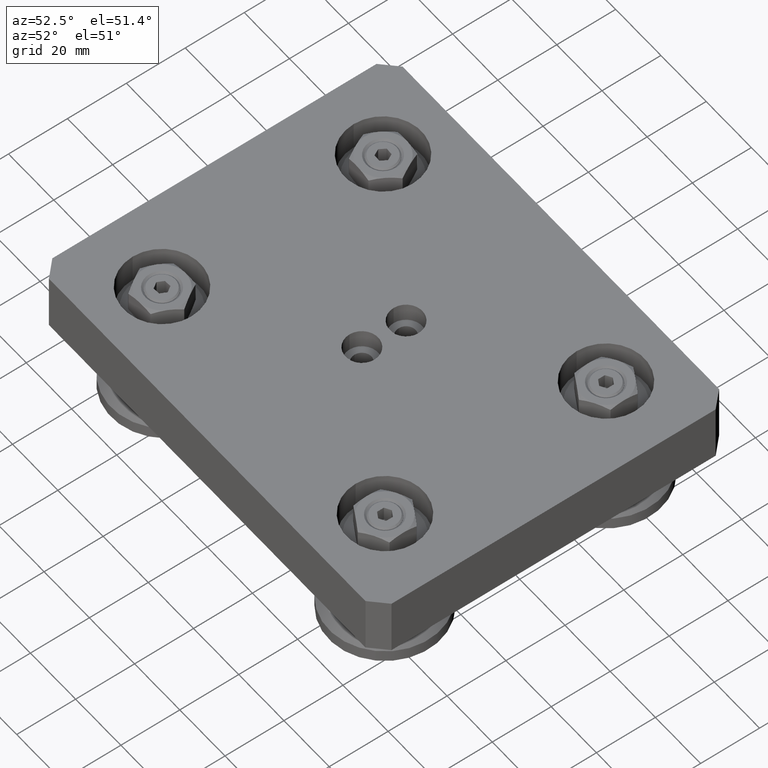
[diagram: clean part render]
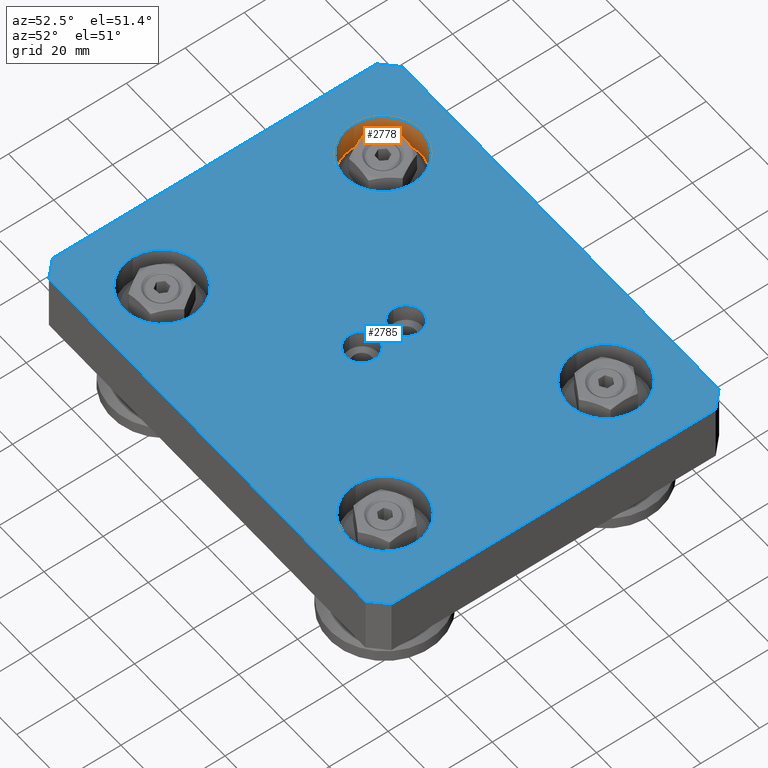
[diagram: same view with the hole feature highlighted: cylindrical wall and planar end face, labeled with their STEP entity ids]
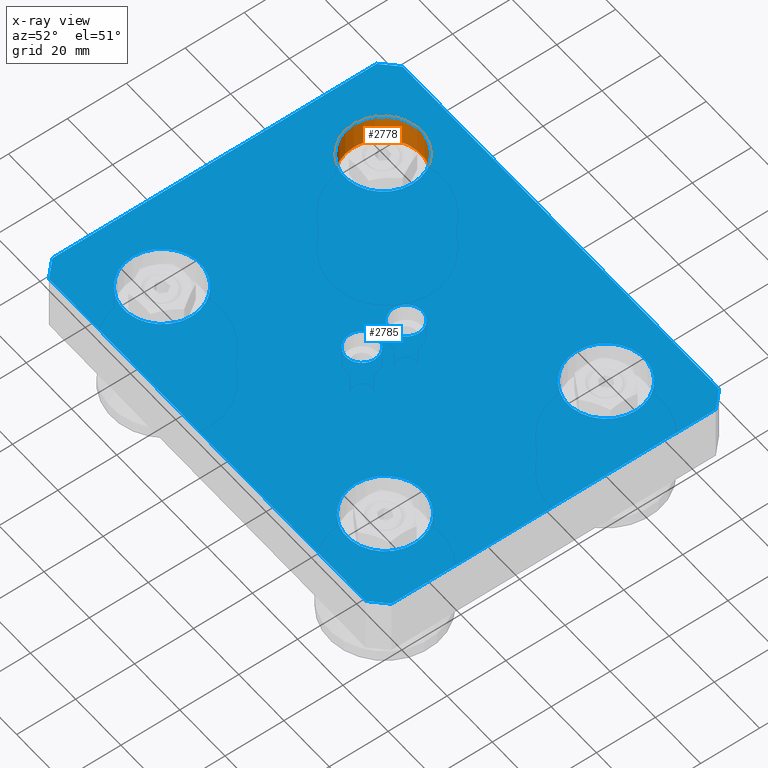
[diagram: x-ray of the same camera — body ghosted, the hole faces saturated]
A machine part, auxiliary view. The highlighted faces form one hole feature of diameter 26 mm: the cylindrical wall (entity #2778, orange) and its adjacent planar end face (entity #2785, blue) — they share a circular edge in the B-rep.
The next image is the same camera in x-ray (body ghosted, the hole faces saturated) — the bore reads through the body.
Wall:
#184=CYLINDRICAL_SURFACE('',#3183,13.);
#285=CIRCLE('',#3181,13.);
#287=CIRCLE('',#3184,13.);
#439=FACE_OUTER_BOUND('',#631,.T.);
#631=EDGE_LOOP('',(#1960,#1961,#1962,#1963));
#851=LINE('',#4539,#1064);
#1064=VECTOR('',#3617,13.);
#1281=VERTEX_POINT('',#4532);
#1283=VERTEX_POINT('',#4537);
#1539=EDGE_CURVE('',#1281,#1281,#285,.T.);
#1541=EDGE_CURVE('',#1283,#1283,#287,.T.);
#1542=EDGE_CURVE('',#1283,#1281,#851,.T.);
#1960=ORIENTED_EDGE('',*,*,#1541,.F.);
#1961=ORIENTED_EDGE('',*,*,#1542,.T.);
#1962=ORIENTED_EDGE('',*,*,#1539,.F.);
#1963=ORIENTED_EDGE('',*,*,#1542,.F.);
#2778=ADVANCED_FACE('',(#439),#184,.F.);
#3181=AXIS2_PLACEMENT_3D('',#4533,#3609,#3610);
#3183=AXIS2_PLACEMENT_3D('',#4536,#3613,#3614);
#3184=AXIS2_PLACEMENT_3D('',#4538,#3615,#3616);
#3609=DIRECTION('center_axis',(0.,0.,1.));
#3610=DIRECTION('ref_axis',(1.,0.,0.));
#3613=DIRECTION('center_axis',(0.,0.,1.));
#3614=DIRECTION('ref_axis',(1.,0.,0.));
#3615=DIRECTION('center_axis',(0.,0.,-1.));
#3616=DIRECTION('ref_axis',(1.,0.,0.));
#3617=DIRECTION('',(0.,0.,-1.));
#4532=CARTESIAN_POINT('',(-62.3,37.5,10.));
#4533=CARTESIAN_POINT('Origin',(-49.3,37.5,10.));
#4536=CARTESIAN_POINT('Origin',(-49.3,37.5,15.));
#4537=CARTESIAN_POINT('',(-62.3,37.5,20.));
#4538=CARTESIAN_POINT('Origin',(-49.3,37.5,20.));
#4539=CARTESIAN_POINT('',(-62.3,37.5,15.));
End face:
#239=FACE_BOUND('',#640,.T.);
#240=FACE_BOUND('',#641,.T.);
#241=FACE_BOUND('',#642,.T.);
#242=FACE_BOUND('',#643,.T.);
#243=FACE_BOUND('',#644,.T.);
#244=FACE_BOUND('',#645,.T.);
#275=CIRCLE('',#3160,5.5);
#278=CIRCLE('',#3166,5.5);
#281=CIRCLE('',#3172,13.);
#284=CIRCLE('',#3178,13.);
#287=CIRCLE('',#3184,13.);
#290=CIRCLE('',#3190,13.);
#446=FACE_OUTER_BOUND('',#639,.T.);
#639=EDGE_LOOP('',(#1986,#1987,#1988,#1989,#1990,#1991,#1992,#1993));
#640=EDGE_LOOP('',(#1994));
#641=EDGE_LOOP('',(#1995));
#642=EDGE_LOOP('',(#1996));
#643=EDGE_LOOP('',(#1997));
#644=EDGE_LOOP('',(#1998));
#645=EDGE_LOOP('',(#1999));
#821=LINE('',#4433,#1034);
#827=LINE('',#4444,#1040);
#834=LINE('',#4472,#1047);
#837=LINE('',#4477,#1050);
#839=LINE('',#4481,#1052);
#841=LINE('',#4485,#1054);
#855=LINE('',#4554,#1068);
#856=LINE('',#4556,#1069);
#1034=VECTOR('',#3505,10.);
#1040=VECTOR('',#3513,10.);
#1047=VECTOR('',#3536,10.);
#1050=VECTOR('',#3541,10.);
#1052=VECTOR('',#3545,10.);
#1054=VECTOR('',#3549,10.);
#1068=VECTOR('',#3637,10.);
#1069=VECTOR('',#3640,10.);
#1247=VERTEX_POINT('',#4431);
#1248=VERTEX_POINT('',#4432);
#1252=VERTEX_POINT('',#4442);
#1264=VERTEX_POINT('',#4470);
#1265=VERTEX_POINT('',#4471);
#1266=VERTEX_POINT('',#4476);
#1267=VERTEX_POINT('',#4480);
#1268=VERTEX_POINT('',#4484);
#1271=VERTEX_POINT('',#4493);
#1274=VERTEX_POINT('',#4504);
#1277=VERTEX_POINT('',#4515);
#1280=VERTEX_POINT('',#4526);
#1283=VERTEX_POINT('',#4537);
#1286=VERTEX_POINT('',#4548);
#1491=EDGE_CURVE('',#1247,#1248,#821,.T.);
#1497=EDGE_CURVE('',#1252,#1247,#827,.T.);
#1510=EDGE_CURVE('',#1264,#1265,#834,.T.);
#1513=EDGE_CURVE('',#1265,#1266,#837,.T.);
#1515=EDGE_CURVE('',#1266,#1267,#839,.T.);
#1517=EDGE_CURVE('',#1268,#1252,#841,.T.);
#1521=EDGE_CURVE('',#1271,#1271,#275,.T.);
#1526=EDGE_CURVE('',#1274,#1274,#278,.T.);
#1531=EDGE_CURVE('',#1277,#1277,#281,.T.);
#1536=EDGE_CURVE('',#1280,#1280,#284,.T.);
#1541=EDGE_CURVE('',#1283,#1283,#287,.T.);
#1546=EDGE_CURVE('',#1286,#1286,#290,.T.);
#1549=EDGE_CURVE('',#1267,#1268,#855,.T.);
#1550=EDGE_CURVE('',#1248,#1264,#856,.T.);
#1986=ORIENTED_EDGE('',*,*,#1491,.F.);
#1987=ORIENTED_EDGE('',*,*,#1497,.F.);
#1988=ORIENTED_EDGE('',*,*,#1517,.F.);
#1989=ORIENTED_EDGE('',*,*,#1549,.F.);
#1990=ORIENTED_EDGE('',*,*,#1515,.F.);
#1991=ORIENTED_EDGE('',*,*,#1513,.F.);
#1992=ORIENTED_EDGE('',*,*,#1510,.F.);
#1993=ORIENTED_EDGE('',*,*,#1550,.F.);
#1994=ORIENTED_EDGE('',*,*,#1521,.T.);
#1995=ORIENTED_EDGE('',*,*,#1526,.T.);
#1996=ORIENTED_EDGE('',*,*,#1531,.T.);
#1997=ORIENTED_EDGE('',*,*,#1536,.T.);
#1998=ORIENTED_EDGE('',*,*,#1541,.T.);
#1999=ORIENTED_EDGE('',*,*,#1546,.T.);
#2673=PLANE('',#3194);
#2785=ADVANCED_FACE('',(#446,#239,#240,#241,#242,#243,#244),#2673,.T.);
#3160=AXIS2_PLACEMENT_3D('',#4494,#3559,#3560);
#3166=AXIS2_PLACEMENT_3D('',#4505,#3573,#3574);
#3172=AXIS2_PLACEMENT_3D('',#4516,#3587,#3588);
#3178=AXIS2_PLACEMENT_3D('',#4527,#3601,#3602);
#3184=AXIS2_PLACEMENT_3D('',#4538,#3615,#3616);
#3190=AXIS2_PLACEMENT_3D('',#4549,#3629,#3630);
#3194=AXIS2_PLACEMENT_3D('',#4557,#3641,#3642);
#3505=DIRECTION('',(0.707106781186548,0.707106781186548,0.));
#3513=DIRECTION('',(0.,1.,0.));
#3536=DIRECTION('',(0.707106781186548,-0.707106781186548,0.));
#3541=DIRECTION('',(0.,-1.,0.));
#3545=DIRECTION('',(-0.707106781186548,-0.707106781186548,0.));
#3549=DIRECTION('',(-0.707106781186548,0.707106781186548,0.));
#3559=DIRECTION('center_axis',(0.,0.,-1.));
#3560=DIRECTION('ref_axis',(1.,0.,0.));
#3573=DIRECTION('center_axis',(0.,0.,-1.));
#3574=DIRECTION('ref_axis',(1.,0.,0.));
#3587=DIRECTION('center_axis',(0.,0.,-1.));
#3588=DIRECTION('ref_axis',(1.,0.,0.));
#3601=DIRECTION('center_axis',(0.,0.,-1.));
#3602=DIRECTION('ref_axis',(1.,0.,0.));
#3615=DIRECTION('center_axis',(0.,0.,-1.));
#3616=DIRECTION('ref_axis',(1.,0.,0.));
#3629=DIRECTION('center_axis',(0.,0.,-1.));
#3630=DIRECTION('ref_axis',(1.,0.,0.));
#3637=DIRECTION('',(-1.,0.,0.));
#3640=DIRECTION('',(1.,0.,0.));
#3641=DIRECTION('center_axis',(0.,0.,1.));
#3642=DIRECTION('ref_axis',(1.,0.,0.));
#4431=CARTESIAN_POINT('',(-75.,55.,20.));
#4432=CARTESIAN_POINT('',(-70.,60.,20.));
#4433=CARTESIAN_POINT('',(-68.75,61.25,20.));
#4442=CARTESIAN_POINT('',(-75.,-55.,20.));
#4444=CARTESIAN_POINT('',(-75.,-60.,20.));
#4470=CARTESIAN_POINT('',(70.,60.,20.));
#4471=CARTESIAN_POINT('',(75.,55.,20.));
#4472=CARTESIAN_POINT('',(68.75,61.25,20.));
#4476=CARTESIAN_POINT('',(75.,-55.,20.));
#4477=CARTESIAN_POINT('',(75.,60.,20.));
#4480=CARTESIAN_POINT('',(70.,-60.,20.));
#4481=CARTESIAN_POINT('',(68.75,-61.25,20.));
#4484=CARTESIAN_POINT('',(-70.,-60.,20.));
#4485=CARTESIAN_POINT('',(-68.75,-61.25,20.));
#4493=CARTESIAN_POINT('',(-5.5,7.5,20.));
#4494=CARTESIAN_POINT('Origin',(0.,7.5,20.));
#4504=CARTESIAN_POINT('',(-5.5,-7.5,20.));
#4505=CARTESIAN_POINT('Origin',(0.,-7.5,20.));
#4515=CARTESIAN_POINT('',(36.3,-37.5,20.));
#4516=CARTESIAN_POINT('Origin',(49.3,-37.5,20.));
#4526=CARTESIAN_POINT('',(36.3,37.5,20.));
#4527=CARTESIAN_POINT('Origin',(49.3,37.5,20.));
#4537=CARTESIAN_POINT('',(-62.3,37.5,20.));
#4538=CARTESIAN_POINT('Origin',(-49.3,37.5,20.));
#4548=CARTESIAN_POINT('',(-62.3,-37.5,20.));
#4549=CARTESIAN_POINT('Origin',(-49.3,-37.5,20.));
#4554=CARTESIAN_POINT('',(75.,-60.,20.));
#4556=CARTESIAN_POINT('',(-75.,60.,20.));
#4557=CARTESIAN_POINT('Origin',(0.,3.58859967555606E-16,20.));